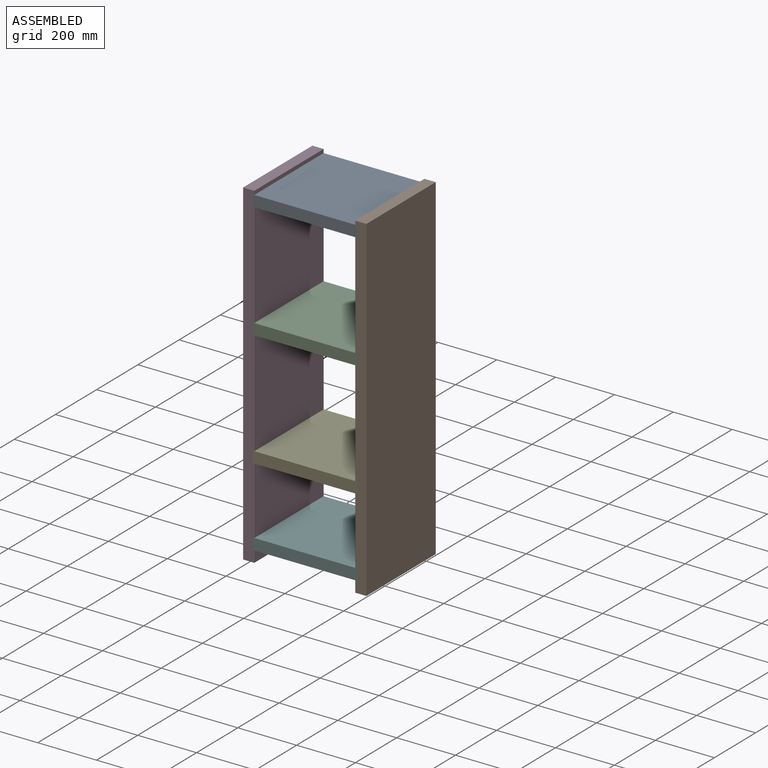
[diagram: assembled view]
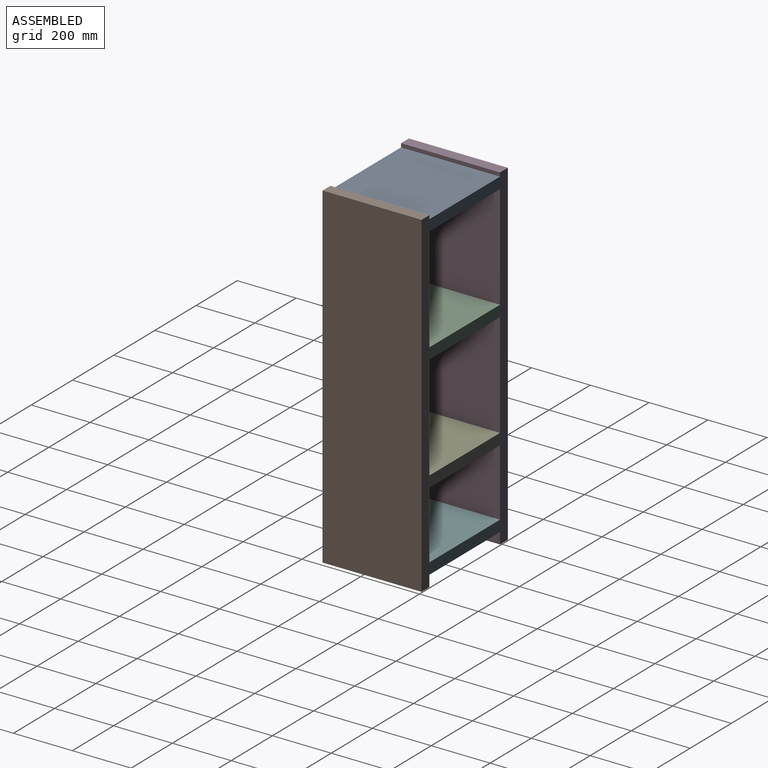
[diagram: assembled view, second angle]
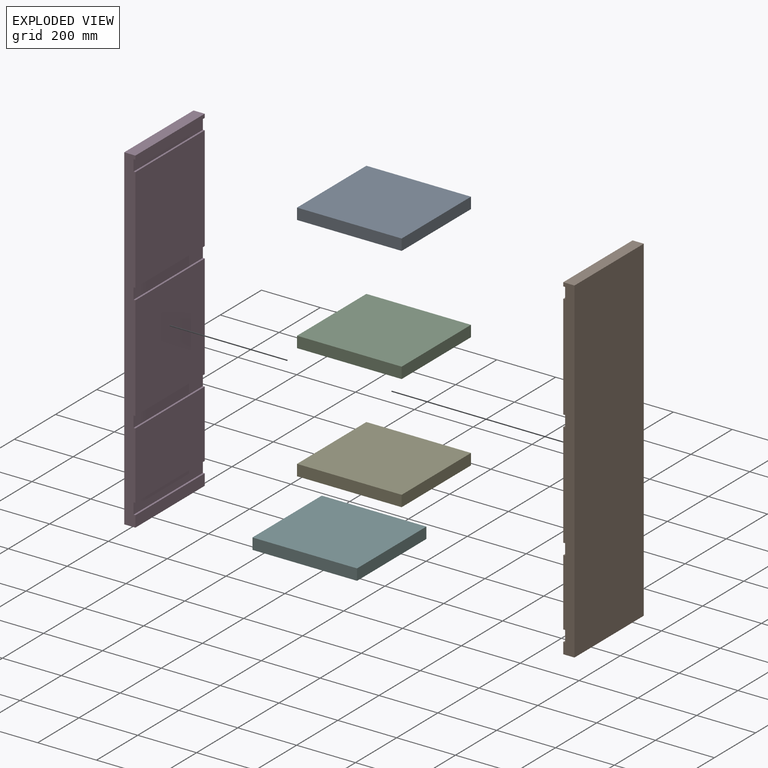
[diagram: exploded view]
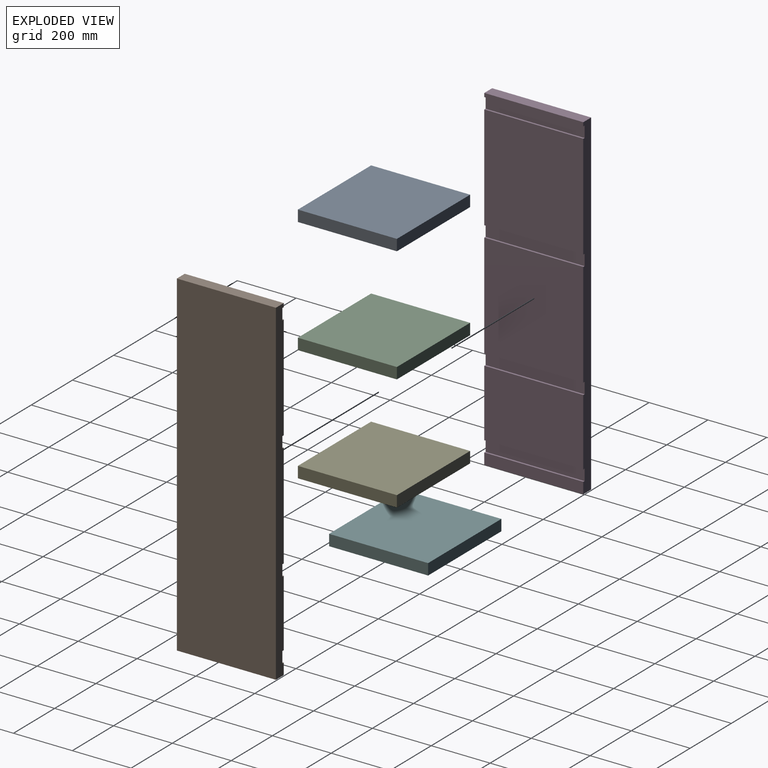
[diagram: exploded view, second angle]
ASSEMBLY  parts=6 mates=5
PART A: 6 faces, bbox 355.6x336.6x38.1 mm
  f0: plane 336.55x38.1mm, normal (-1,0,0), area 12822.6mm2, adj f1,f3,f4,f5
  f1: plane 355.6x38.1mm, normal (0,-1,0), area 13548.4mm2, adj f0,f2,f4,f5
  f2: plane 336.55x38.1mm, normal (1,0,0), area 12822.6mm2, adj f1,f3,f4,f5
  f3: plane 355.6x38.1mm, normal (0,1,0), area 13548.4mm2, adj f0,f2,f4,f5
  f4: plane 355.6x336.55mm, normal (0,0,1), area 119677.2mm2, adj f0,f1,f2,f3
  f5: plane 355.6x336.55mm, normal (0,0,-1), area 119677.2mm2, adj f0,f1,f2,f3
PART B: 22 faces, bbox 38.1x336.6x1143 mm
  f0: plane 355.6x336.55mm, normal (-1,0,0), area 119677.2mm2, adj f4,f7,f17,f20
  f1: plane 355.6x336.55mm, normal (-1,0,0), area 119677.2mm2, adj f4,f7,f14,f18
  f2: plane 336.55x228.6mm, normal (-1,0,0), area 76935.3mm2, adj f4,f7,f10,f15
  f3: plane 336.55x38.1mm, normal (-1,0,0), area 12822.6mm2, adj f4,f6,f7,f11
  f4: plane 1143x38.1mm, normal (0,-1,0), area 42580.6mm2, adj f0,f1,f2,f3,f5,f6,f8,f9
  f5: plane 336.55x38.1mm, normal (0,0,1), area 12822.6mm2, adj f4,f7,f8,f9
  f6: plane 336.55x38.1mm, normal (0,0,-1), area 12822.6mm2, adj f3,f4,f7,f8
  f7: plane 1143x38.1mm, normal (0,1,0), area 42580.6mm2, adj f0,f1,f2,f3,f5,f6,f8,f9
  f8: plane 1143x336.55mm, normal (1,0,0), area 384676.7mm2, adj f4,f5,f6,f7
  f9: plane 336.55x12.7mm, normal (-1,0,0), area 4274.2mm2, adj f4,f5,f7,f19
  f10: plane 336.55x6.35mm, normal (0,0,-1), area 2137.1mm2, adj f2,f4,f7,f12
  f11: plane 336.55x6.35mm, normal (0,0,1), area 2137.1mm2, adj f3,f4,f7,f12
  f12: plane 336.55x38.1mm, normal (-1,0,0), area 12822.6mm2, adj f4,f7,f10,f11
  f13: plane 336.55x38.1mm, normal (-1,0,0), area 12822.6mm2, adj f4,f7,f14,f15
  f14: plane 336.55x6.35mm, normal (0,0,-1), area 2137.1mm2, adj f1,f4,f7,f13
  f15: plane 336.55x6.35mm, normal (0,0,1), area 2137.1mm2, adj f2,f4,f7,f13
  f16: plane 336.55x38.1mm, normal (-1,0,0), area 12822.6mm2, adj f4,f7,f17,f18
  f17: plane 336.55x6.35mm, normal (0,0,-1), area 2137.1mm2, adj f0,f4,f7,f16
  f18: plane 336.55x6.35mm, normal (0,0,1), area 2137.1mm2, adj f1,f4,f7,f16
  f19: plane 336.55x6.35mm, normal (0,0,-1), area 2137.1mm2, adj f4,f7,f9,f21
  f20: plane 336.55x6.35mm, normal (0,0,1), area 2137.1mm2, adj f0,f4,f7,f21
  f21: plane 336.55x38.1mm, normal (-1,0,0), area 12822.6mm2, adj f4,f7,f19,f20
PART C: same geometry as A
PART D: same geometry as B
PART E: same geometry as A
PART F: same geometry as A
PLACE A t=(-1168.67,-116.47,723.72)mm
PLACE B t=(-819.42,51.8,203.02)mm
PLACE C rot(axis=(0.03,0,1),0deg) t=(-1168.67,-116.47,330.02)mm
PLACE D rot(axis=(0,0,-1),180deg) t=(-1162.32,51.8,203.02)mm
PLACE E rot(axis=(0.48,0,0.88),0deg) t=(-1168.67,-116.47,-63.68)mm
PLACE F rot(axis=(-0.19,0.98,0),0deg) t=(-1168.67,-116.47,-330.38)mm
MATE slider E.f0 <-> D.f13  axis (-1,0,0) through (-1168.67,220.08,-44.63)mm
MATE slider C.f0 <-> D.f16  axis (-1,0,0) through (-1168.67,220.08,349.07)mm
MATE slider B.f21 <-> A.f2  axis (-1,0,0) through (-813.07,220.08,742.77)mm
MATE slider F.f0 <-> D.f12  axis (-1,0,0) through (-1168.67,220.08,-311.33)mm
MATE slider A.f0 <-> D.f21  axis (-1,0,0) through (-1168.67,220.08,742.77)mm
